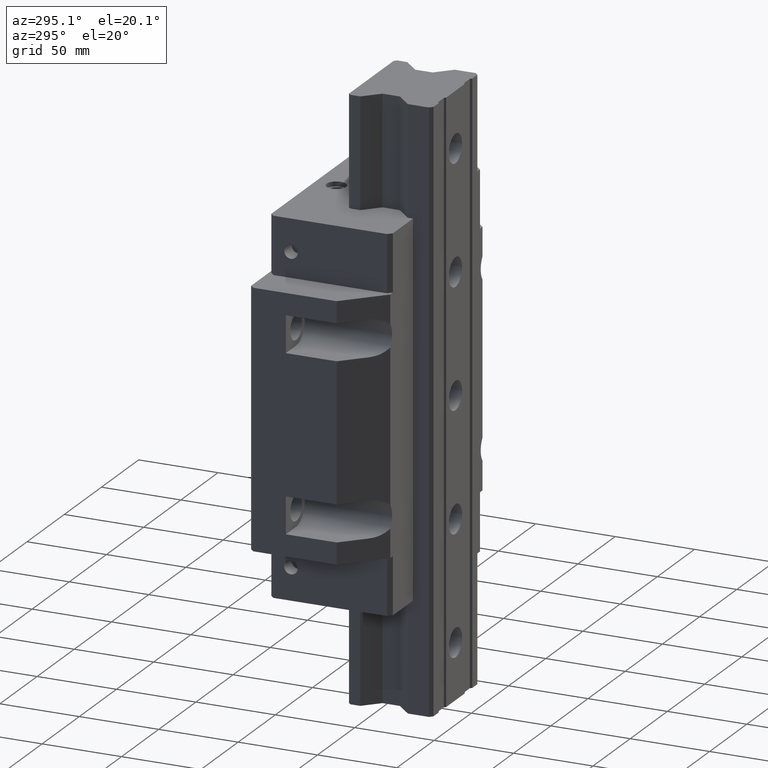
[diagram: clean part render]
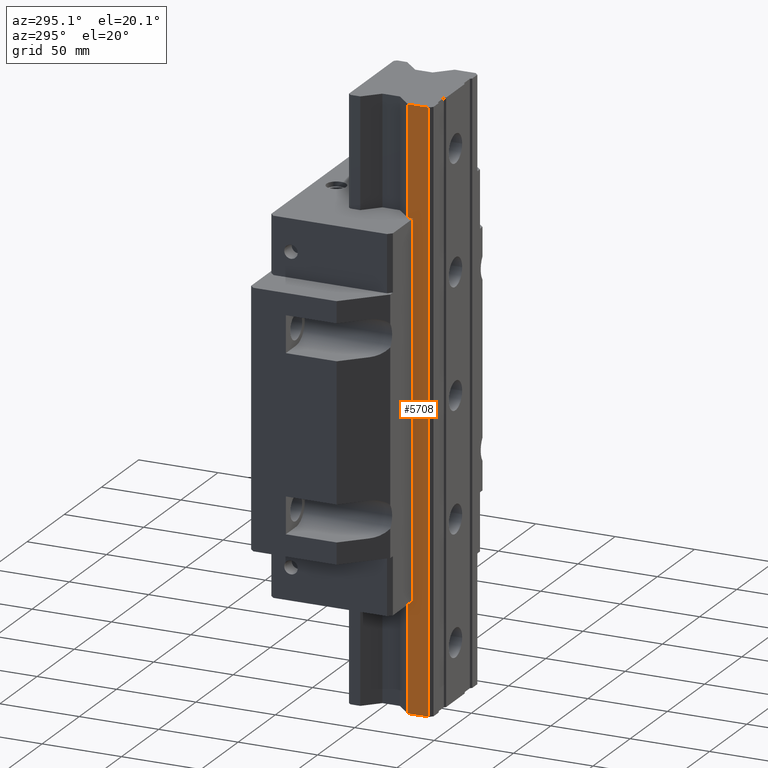
[diagram: same view with one face highlighted and labeled with its STEP entity id]
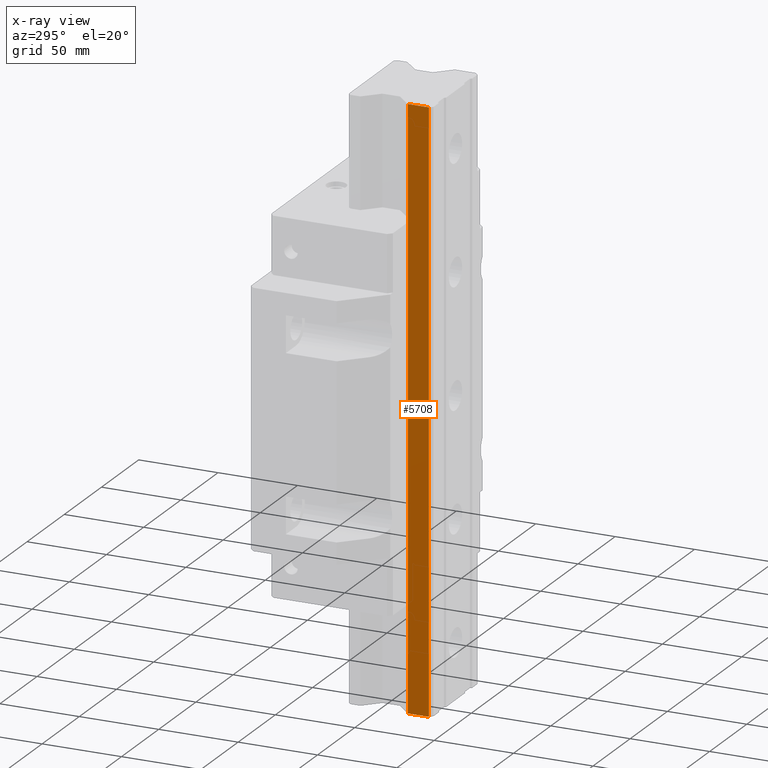
[diagram: x-ray of the same camera — body ghosted, the highlighted face saturated]
A machine part, auxiliary view. The second image highlights one B-rep face of the part: STEP entity #5708.
The next image is the same camera in x-ray: the body ghosted, the highlighted face saturated — about 0% of this face is hidden behind the body in this view.
In plain terms, the highlighted planar face has unit normal (-1, -0, 0).
Its self-contained STEP definition (entity closure, byte-faithful):
#4446=DIRECTION('',(-4.698236218247E-7,-9.999999999999E-1,0.E0));
#4447=VECTOR('',#4446,1.321902927919E1);
#4448=CARTESIAN_POINT('',(-3.150006690872E1,-7.478096871983E1,-1.85E2));
#4449=LINE('',#4448,#4447);
#4620=DIRECTION('',(0.E0,1.010122916243E-14,1.E0));
#4621=VECTOR('',#4620,3.7E2);
#4622=CARTESIAN_POINT('',(-3.150007311933E1,-8.799999799901E1,-1.85E2));
#4623=LINE('',#4622,#4621);
#4624=DIRECTION('',(0.E0,0.E0,1.E0));
#4625=VECTOR('',#4624,3.7E2);
#4626=CARTESIAN_POINT('',(-3.150006690872E1,-7.478096871983E1,-1.85E2));
#4627=LINE('',#4626,#4625);
#4628=DIRECTION('',(-4.698236218248E-7,-9.999999999999E-1,-1.075030126273E-14));
#4629=VECTOR('',#4628,1.321902927918E1);
#4630=CARTESIAN_POINT('',(-3.150006690872E1,-7.478096871983E1,1.85E2));
#4631=LINE('',#4630,#4629);
#5204=CARTESIAN_POINT('',(-3.150006690872E1,-7.478096871983E1,-1.85E2));
#5205=VERTEX_POINT('',#5204);
#5206=CARTESIAN_POINT('',(-3.150007311933E1,-8.799999799901E1,-1.85E2));
#5207=VERTEX_POINT('',#5206);
#5276=CARTESIAN_POINT('',(-3.150007311933E1,-8.799999799901E1,1.85E2));
#5277=VERTEX_POINT('',#5276);
#5278=CARTESIAN_POINT('',(-3.150006690872E1,-7.478096871983E1,1.85E2));
#5279=VERTEX_POINT('',#5278);
#5695=CARTESIAN_POINT('',(-3.150006253744E1,-7.478096307749E1,-1.85E2));
#5696=DIRECTION('',(-9.999999999992E-1,-1.295177509571E-6,0.E0));
#5697=DIRECTION('',(1.295177509571E-6,-9.999999999992E-1,0.E0));
#5698=AXIS2_PLACEMENT_3D('',#5695,#5696,#5697);
#5699=PLANE('',#5698);
#5700=ORIENTED_EDGE('',*,*,#5453,.F.);
#5702=ORIENTED_EDGE('',*,*,#5701,.T.);
#5704=ORIENTED_EDGE('',*,*,#5703,.T.);
#5705=ORIENTED_EDGE('',*,*,#5687,.F.);
#5706=EDGE_LOOP('',(#5700,#5702,#5704,#5705));
#5707=FACE_OUTER_BOUND('',#5706,.F.);
#5708=ADVANCED_FACE('',(#5707),#5699,.T.);
#5453=EDGE_CURVE('',#5205,#5207,#4449,.T.);
#5687=EDGE_CURVE('',#5207,#5277,#4623,.T.);
#5701=EDGE_CURVE('',#5205,#5279,#4627,.T.);
#5703=EDGE_CURVE('',#5279,#5277,#4631,.T.);